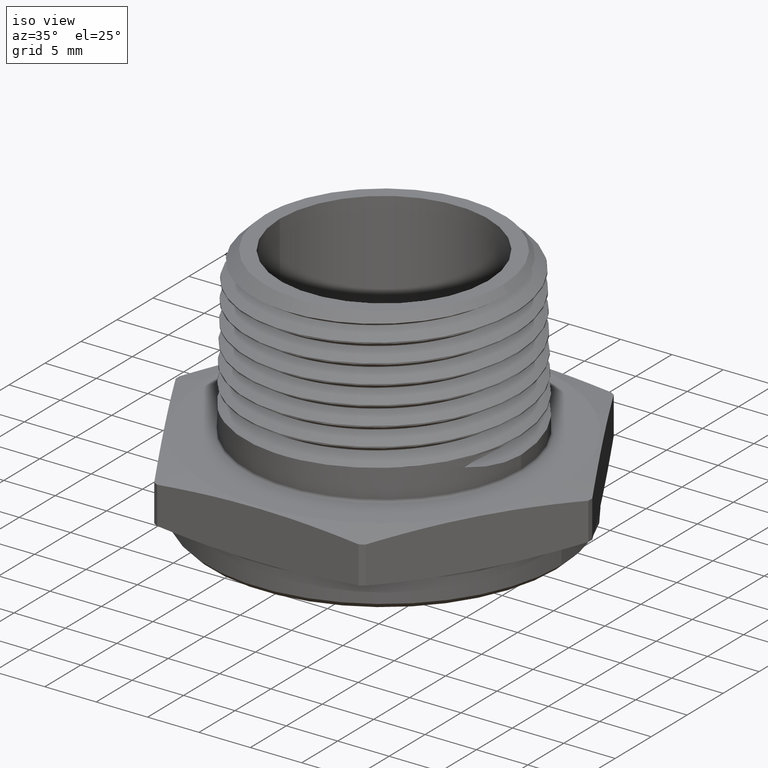
[diagram: clean part render]
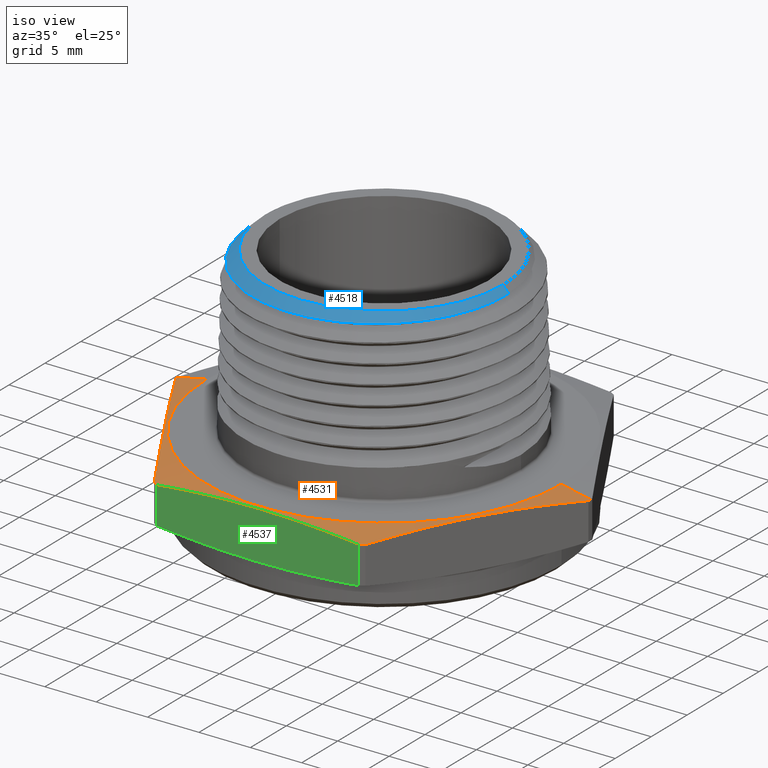
[diagram: same view with three faces highlighted in distinct colors, each labeled with its STEP entity id]
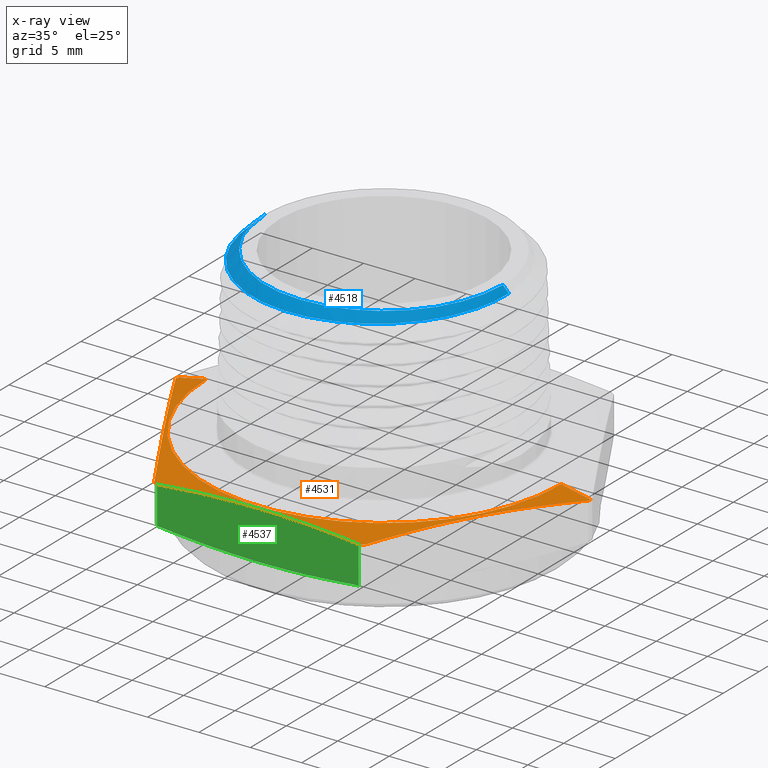
[diagram: x-ray of the same camera — body ghosted, the three highlighted faces saturated]
A machine part, iso view with three faces highlighted in distinct colors.
The next image is the same camera in x-ray (body ghosted, the three faces saturated) — at least one of them is partly hidden behind the body in this view.
Their STEP definitions:

[orange] entity #4531 — the highlighted conical surface has half-angle 78 deg.
#4 = CARTESIAN_POINT ( 'NONE',  ( 0.6799999999999999400, 8.327598234202001900E-017, 0.1899999999999998600 ) ) ;
#5 = DIRECTION ( 'NONE',  ( 0.9781476007338069100, 1.197885328332319900E-016, -0.2079116908177532600 ) ) ;
#951 = DIRECTION ( 'NONE',  ( -0.9781476007338069100, 0.0000000000000000000, -0.2079116908177530400 ) ) ;
#952 = CARTESIAN_POINT ( 'NONE',  ( -0.6799999999999999400, 0.0000000000000000000, 0.1899999999999999700 ) ) ;
#960 = CARTESIAN_POINT ( 'NONE',  ( 2.038556488335811200E-017, 0.0000000000000000000, 0.1664607697301080700 ) ) ;
#961 = DIRECTION ( 'NONE',  ( -1.224646799147351200E-016, -0.0000000000000000000, -1.000000000000000000 ) ) ;
#962 = DIRECTION ( 'NONE',  ( -1.000000000000000000, 0.0000000000000000000, 1.295544211397577000E-016 ) ) ;
#988 = CARTESIAN_POINT ( 'NONE',  ( 0.4044415792814493600, -0.6794866359911330100, 0.1664607697301080400 ) ) ;
#989 = CARTESIAN_POINT ( 'NONE',  ( -0.4044415792814489200, -0.6794866359911333500, 0.1664607697301080900 ) ) ;
#992 = CARTESIAN_POINT ( 'NONE',  ( 0.3862318986596263200, -0.6899999999999997200, 0.1664607697301080400 ) ) ;
#1098 = DIRECTION ( 'NONE',  ( -1.000000000000000000, 0.0000000000000000000, 1.004355880023626300E-016 ) ) ;
#1099 = CARTESIAN_POINT ( 'NONE',  ( 2.326828918379966200E-017, 0.0000000000000000000, 0.1899999999999999200 ) ) ;
#1100 = DIRECTION ( 'NONE',  ( -1.224646799147351200E-016, -0.0000000000000000000, -1.000000000000000000 ) ) ;
#1288 = B_SPLINE_CURVE_WITH_KNOTS ( 'NONE', 3,
 ( #2893, #2895, #2896, #2897, #2898, #2899, #2900, #2901, #2902 ),
 .UNSPECIFIED., .F., .F.,
 ( 4, 2, 1, 2, 4 ),
 ( 1.926240183769432900E-006, 0.004907071353161022000, 0.009812216466138274200, 0.01471736157911553200, 0.01962250669209278700 ),
 .UNSPECIFIED. ) ;
#1289 = B_SPLINE_CURVE_WITH_KNOTS ( 'NONE', 3,
 ( #2904, #2892, #2894, #2906, #2907, #2908, #2909, #2910, #2911, #2912 ),
 .UNSPECIFIED., .F., .F.,
 ( 4, 2, 2, 2, 4 ),
 ( 0.03855886827555554000, 0.04347868095374842600, 0.04839849363194130600, 0.05331830631013419200, 0.05823811898832707800 ),
 .UNSPECIFIED. ) ;
#1290 = B_SPLINE_CURVE_WITH_KNOTS ( 'NONE', 3,
 ( #2914, #2903, #2905, #2916, #2917, #2918, #2919, #2920, #2921 ),
 .UNSPECIFIED., .F., .F.,
 ( 4, 2, 1, 2, 4 ),
 ( 1.926240183754274000E-006, 0.004907071353161006300, 0.009812216466138258500, 0.01471736157911551100, 0.01962250669209276300 ),
 .UNSPECIFIED. ) ;
#2791 = CARTESIAN_POINT ( 'NONE',  ( -0.6799999999999998300, 0.0000000000000000000, 0.1899999999999999700 ) ) ;
#2828 = CARTESIAN_POINT ( 'NONE',  ( 0.6800000000000001600, 8.327598234202003100E-017, 0.1899999999999998600 ) ) ;
#2839 = CARTESIAN_POINT ( 'NONE',  ( 0.7907433714816832800, 9.683813388320298700E-017, 0.1664607697301079500 ) ) ;
#2842 = CARTESIAN_POINT ( 'NONE',  ( -0.7907433714816832800, 0.0000000000000000000, 0.1664607697301081800 ) ) ;
#2844 = CARTESIAN_POINT ( 'NONE',  ( -0.7906734779410755600, -0.01051336400886675000, 0.1664607697301081800 ) ) ;
#2845 = CARTESIAN_POINT ( 'NONE',  ( -0.3862318986596260900, -0.6899999999999998400, 0.1664607697301080900 ) ) ;
#2880 = CARTESIAN_POINT ( 'NONE',  ( 0.7906734779410755600, -0.01051336400886681900, 0.1664607697301079500 ) ) ;
#2892 = CARTESIAN_POINT ( 'NONE',  ( 0.3219976927785969100, -0.6899999999999996100, 0.1731296582039849900 ) ) ;
#2893 = CARTESIAN_POINT ( 'NONE',  ( -0.4044415792814489200, -0.6794866359911333500, 0.1664607697301080900 ) ) ;
#2894 = CARTESIAN_POINT ( 'NONE',  ( 0.2577350373824610600, -0.6899999999999997200, 0.1785309252663125100 ) ) ;
#2895 = CARTESIAN_POINT ( 'NONE',  ( -0.4366275708364179000, -0.6237388633259445300, 0.1731439624358382700 ) ) ;
#2896 = CARTESIAN_POINT ( 'NONE',  ( -0.4688135623913867700, -0.5679910906607557000, 0.1785507198903874800 ) ) ;
#2897 = CARTESIAN_POINT ( 'NONE',  ( -0.5331855455013244600, -0.4564955453303777800, 0.1859262670952156700 ) ) ;
#2898 = CARTESIAN_POINT ( 'NONE',  ( -0.5975575286112625500, -0.3450000000000002000, 0.1898226016713840400 ) ) ;
#2899 = CARTESIAN_POINT ( 'NONE',  ( -0.6619295117212000700, -0.2335044546696225200, 0.1859262670952157300 ) ) ;
#2900 = CARTESIAN_POINT ( 'NONE',  ( -0.7263014948311378200, -0.1220089093392447100, 0.1785507198903875900 ) ) ;
#2901 = CARTESIAN_POINT ( 'NONE',  ( -0.7584874863861066400, -0.06626113667405585100, 0.1731439624358384100 ) ) ;
#2902 = CARTESIAN_POINT ( 'NONE',  ( -0.7906734779410755600, -0.01051336400886675000, 0.1664607697301081800 ) ) ;
#2903 = CARTESIAN_POINT ( 'NONE',  ( 0.7584874863861066400, -0.06626113667405567100, 0.1731439624358382100 ) ) ;
#2904 = CARTESIAN_POINT ( 'NONE',  ( 0.3862318986596263200, -0.6899999999999997200, 0.1664607697301080400 ) ) ;
#2905 = CARTESIAN_POINT ( 'NONE',  ( 0.7263014948311380400, -0.1220089093392446000, 0.1785507198903873400 ) ) ;
#2906 = CARTESIAN_POINT ( 'NONE',  ( 0.1291328840719024900, -0.6899999999999996100, 0.1859095971165682400 ) ) ;
#2907 = CARTESIAN_POINT ( 'NONE',  ( 0.06479292136408863800, -0.6899999999999996100, 0.1878662921647165900 ) ) ;
#2908 = CARTESIAN_POINT ( 'NONE',  ( -0.06397446883635367300, -0.6899999999999996100, 0.1878825250134443500 ) ) ;
#2909 = CARTESIAN_POINT ( 'NONE',  ( -0.1284019097057501600, -0.6899999999999997200, 0.1859414667870732700 ) ) ;
#2910 = CARTESIAN_POINT ( 'NONE',  ( -0.2573352418266425800, -0.6899999999999998400, 0.1785638466773604200 ) ) ;
#2911 = CARTESIAN_POINT ( 'NONE',  ( -0.3219022491185342700, -0.6899999999999997200, 0.1731395673032845900 ) ) ;
#2912 = CARTESIAN_POINT ( 'NONE',  ( -0.3862318986596260900, -0.6899999999999998400, 0.1664607697301080900 ) ) ;
#2914 = CARTESIAN_POINT ( 'NONE',  ( 0.7906734779410755600, -0.01051336400886681900, 0.1664607697301079500 ) ) ;
#2916 = CARTESIAN_POINT ( 'NONE',  ( 0.6619295117211999600, -0.2335044546696222200, 0.1859262670952154800 ) ) ;
#2917 = CARTESIAN_POINT ( 'NONE',  ( 0.5975575286112624300, -0.3450000000000000300, 0.1898226016713839800 ) ) ;
#2918 = CARTESIAN_POINT ( 'NONE',  ( 0.5331855455013245800, -0.4564955453303776700, 0.1859262670952155400 ) ) ;
#2919 = CARTESIAN_POINT ( 'NONE',  ( 0.4688135623913871100, -0.5679910906607553700, 0.1785507198903874300 ) ) ;
#2920 = CARTESIAN_POINT ( 'NONE',  ( 0.4366275708364181800, -0.6237388633259443000, 0.1731439624358382100 ) ) ;
#2921 = CARTESIAN_POINT ( 'NONE',  ( 0.4044415792814493600, -0.6794866359911330100, 0.1664607697301080400 ) ) ;
#3223 = CARTESIAN_POINT ( 'NONE',  ( 2.326828918379966200E-017, 0.0000000000000000000, 0.1899999999999999200 ) ) ;
#3224 = DIRECTION ( 'NONE',  ( -1.224646799147351200E-016, -0.0000000000000000000, -1.000000000000000000 ) ) ;
#3225 = DIRECTION ( 'NONE',  ( -1.000000000000000000, 0.0000000000000000000, 1.004355880023626300E-016 ) ) ;
#3237 = CARTESIAN_POINT ( 'NONE',  ( 2.038556488335811200E-017, 0.0000000000000000000, 0.1664607697301080700 ) ) ;
#3238 = DIRECTION ( 'NONE',  ( -1.224646799147351200E-016, -0.0000000000000000000, -1.000000000000000000 ) ) ;
#3239 = DIRECTION ( 'NONE',  ( -1.000000000000000000, 0.0000000000000000000, 1.295544211397577000E-016 ) ) ;
#3249 = CARTESIAN_POINT ( 'NONE',  ( 2.038556488335811200E-017, 0.0000000000000000000, 0.1664607697301080700 ) ) ;
#3250 = DIRECTION ( 'NONE',  ( -1.224646799147351200E-016, -0.0000000000000000000, -1.000000000000000000 ) ) ;
#3251 = DIRECTION ( 'NONE',  ( -1.000000000000000000, 0.0000000000000000000, 1.295544211397577000E-016 ) ) ;
#3256 = CARTESIAN_POINT ( 'NONE',  ( 2.038556488335811200E-017, 0.0000000000000000000, 0.1664607697301080700 ) ) ;
#3257 = DIRECTION ( 'NONE',  ( -1.224646799147351200E-016, -0.0000000000000000000, -1.000000000000000000 ) ) ;
#3258 = DIRECTION ( 'NONE',  ( -1.000000000000000000, 0.0000000000000000000, 1.295544211397577000E-016 ) ) ;
#3503 = EDGE_CURVE ( 'NONE', #4278, #4289, #4035, .T. ) ;
#3511 = EDGE_CURVE ( 'NONE', #4262, #4292, #4043, .T. ) ;
#3512 = EDGE_CURVE ( 'NONE', #4294, #4292, #4044, .T. ) ;
#3582 = EDGE_CURVE ( 'NONE', #4278, #4262, #4098, .T. ) ;
#3586 = EDGE_CURVE ( 'NONE', #4295, #4344, #4097, .T. ) ;
#3591 = EDGE_CURVE ( 'NONE', #4343, #4347, #4103, .T. ) ;
#3594 = EDGE_CURVE ( 'NONE', #4289, #4330, #4114, .T. ) ;
#3601 = EDGE_CURVE ( 'NONE', #4344, #4294, #1288, .T. ) ;
#3602 = EDGE_CURVE ( 'NONE', #4347, #4295, #1289, .T. ) ;
#3603 = EDGE_CURVE ( 'NONE', #4330, #4343, #1290, .T. ) ;
#3627 = AXIS2_PLACEMENT_3D ( 'NONE', #960, #961, #962 ) ;
#3637 = AXIS2_PLACEMENT_3D ( 'NONE', #3223, #3224, #3225 ) ;
#3640 = AXIS2_PLACEMENT_3D ( 'NONE', #3237, #3238, #3239 ) ;
#3642 = AXIS2_PLACEMENT_3D ( 'NONE', #3249, #3250, #3251 ) ;
#3643 = AXIS2_PLACEMENT_3D ( 'NONE', #3256, #3257, #3258 ) ;
#3679 = AXIS2_PLACEMENT_3D ( 'NONE', #1099, #1100, #1098 ) ;
#4011 = EDGE_LOOP ( 'NONE', ( #4373, #4374, #4375, #4376, #4377, #4378, #4379, #4380, #4381, #4382 ) ) ;
#4035 = LINE ( 'NONE', #4, #4039 ) ;
#4039 = VECTOR ( 'NONE', #5, 39.37007874015748100 ) ;
#4043 = LINE ( 'NONE', #952, #4045 ) ;
#4044 = CIRCLE ( 'NONE', #3627, 0.7907433714816832800 ) ;
#4045 = VECTOR ( 'NONE', #951, 39.37007874015748900 ) ;
#4097 = CIRCLE ( 'NONE', #3640, 0.7907433714816832800 ) ;
#4098 = CIRCLE ( 'NONE', #3637, 0.6799999999999999400 ) ;
#4103 = CIRCLE ( 'NONE', #3642, 0.7907433714816832800 ) ;
#4114 = CIRCLE ( 'NONE', #3643, 0.7907433714816832800 ) ;
#4200 = FACE_OUTER_BOUND ( 'NONE', #4011, .T. ) ;
#4207 = CONICAL_SURFACE ( 'NONE', #3679, 0.6799999999999999400, 1.361356816555583400 ) ;
#4262 = VERTEX_POINT ( 'NONE', #2791 ) ;
#4278 = VERTEX_POINT ( 'NONE', #2828 ) ;
#4289 = VERTEX_POINT ( 'NONE', #2839 ) ;
#4292 = VERTEX_POINT ( 'NONE', #2842 ) ;
#4294 = VERTEX_POINT ( 'NONE', #2844 ) ;
#4295 = VERTEX_POINT ( 'NONE', #2845 ) ;
#4330 = VERTEX_POINT ( 'NONE', #2880 ) ;
#4343 = VERTEX_POINT ( 'NONE', #988 ) ;
#4344 = VERTEX_POINT ( 'NONE', #989 ) ;
#4347 = VERTEX_POINT ( 'NONE', #992 ) ;
#4373 = ORIENTED_EDGE ( 'NONE', *, *, #3503, .F. ) ;
#4374 = ORIENTED_EDGE ( 'NONE', *, *, #3582, .T. ) ;
#4375 = ORIENTED_EDGE ( 'NONE', *, *, #3511, .T. ) ;
#4376 = ORIENTED_EDGE ( 'NONE', *, *, #3512, .F. ) ;
#4377 = ORIENTED_EDGE ( 'NONE', *, *, #3601, .F. ) ;
#4378 = ORIENTED_EDGE ( 'NONE', *, *, #3586, .F. ) ;
#4379 = ORIENTED_EDGE ( 'NONE', *, *, #3602, .F. ) ;
#4380 = ORIENTED_EDGE ( 'NONE', *, *, #3591, .F. ) ;
#4381 = ORIENTED_EDGE ( 'NONE', *, *, #3603, .F. ) ;
#4382 = ORIENTED_EDGE ( 'NONE', *, *, #3594, .F. ) ;
#4531 = ADVANCED_FACE ( 'NONE', ( #4200 ), #4207, .T. ) ;

[blue] entity #4518 — the highlighted conical surface has half-angle 45 deg.
#1 = ORIENTED_EDGE ( 'NONE', *, *, #3561, .F. ) ;
#214 = ORIENTED_EDGE ( 'NONE', *, *, #3564, .T. ) ;
#944 = ORIENTED_EDGE ( 'NONE', *, *, #3565, .T. ) ;
#980 = CARTESIAN_POINT ( 'NONE',  ( -0.4605505608381587100, 3.562229058007021700E-013, 0.8147494391618412800 ) ) ;
#981 = CARTESIAN_POINT ( 'NONE',  ( -0.5015766414513303000, -1.792775245842172800E-016, 0.7737233585486705800 ) ) ;
#1056 = DIRECTION ( 'NONE',  ( -1.000000000000000000, 0.0000000000000000000, 0.0000000000000000000 ) ) ;
#1057 = CARTESIAN_POINT ( 'NONE',  ( 0.0000000000000000000, 0.0000000000000000000, 0.7619092775716851400 ) ) ;
#1058 = DIRECTION ( 'NONE',  ( -0.0000000000000000000, -0.0000000000000000000, -1.000000000000000000 ) ) ;
#1280 = B_SPLINE_CURVE_WITH_KNOTS ( 'NONE', 3,
 ( #3328, #3332, #3339, #3340, #3341, #3342, #3343, #3344, #3345, #3346, #3347, #3348, #3349, #3350, #3351, #3352, #3353, #3354, #3355, #3356, #3357, #3358, #3359, #3360, #3361, #3362, #3363, #3364, #3365, #3366, #3367, #3368, #3369, #3370, #3371, #3372, #3373, #3374, #3375, #3376, #3377, #3378, #3379, #3380, #3381, #3382, #3383 ),
 .UNSPECIFIED., .F., .F.,
 ( 4, 2, 2, 2, 2, 2, 2, 2, 2, 2, 2, 2, 2, 1, 2, 2, 2, 2, 2, 2, 2, 2, 2, 4 ),
 ( 0.02081495255427050200, 0.02326129049279242200, 0.02448445946205338500, 0.02570762843131434500, 0.02815396636983626500, 0.03060030430835818500, 0.03182347327761914100, 0.03304664224688010100, 0.03549298018540202000, 0.03671614915466298000, 0.03793931812392394000, 0.04038565606244584600, 0.04160882503170681300, 0.04283199400096776600, 0.04405516297022872600, 0.04527833193948967900, 0.04772466987801159100, 0.04894783884727255100, 0.05017100781653350400, 0.05261734575505541700, 0.05384051472431637700, 0.05506368369357733000, 0.05751002163209924200, 0.05995635957062115500 ),
 .UNSPECIFIED. ) ;
#2875 = CARTESIAN_POINT ( 'NONE',  ( -0.4553000000000001500, 0.0000000000000000000, 0.8199999999999999500 ) ) ;
#2876 = CARTESIAN_POINT ( 'NONE',  ( 0.4553000000000001500, 5.860879756886066600E-017, 0.8199999999999999500 ) ) ;
#2879 = CARTESIAN_POINT ( 'NONE',  ( -0.4497332923931922600, -0.07618520529804984100, 0.8191594297882217600 ) ) ;
#2881 = CARTESIAN_POINT ( 'NONE',  ( 0.4785987701361332800, 1.449462907897988800E-015, 0.7967012298638671600 ) ) ;
#2883 = CARTESIAN_POINT ( 'NONE',  ( -0.4562165172905737200, -5.975917486140575200E-017, 0.8190834827094264400 ) ) ;
#3265 = CARTESIAN_POINT ( 'NONE',  ( 0.5133907224283157400, 6.287223049337841400E-017, 0.7619092775716851400 ) ) ;
#3269 = DIRECTION ( 'NONE',  ( 0.7071067811865516800, 8.659560562354983400E-017, -0.7071067811865433500 ) ) ;
#3317 = CARTESIAN_POINT ( 'NONE',  ( -0.4555214865556566100, -0.05096441511527716900, 0.8176649507079547500 ) ) ;
#3318 = CARTESIAN_POINT ( 'NONE',  ( -0.5133907224283157400, 0.0000000000000000000, 0.7619092775716851400 ) ) ;
#3321 = CARTESIAN_POINT ( 'NONE',  ( -0.4497332923931922600, -0.07618520529804984100, 0.8191594297882217600 ) ) ;
#3322 = DIRECTION ( 'NONE',  ( -0.7071067811865516800, 0.0000000000000000000, -0.7071067811865433500 ) ) ;
#3323 = CARTESIAN_POINT ( 'NONE',  ( -0.4562165172905737200, -5.975917486140575200E-017, 0.8190834827094264400 ) ) ;
#3324 = CARTESIAN_POINT ( 'NONE',  ( -0.4562002005713485800, -0.02551602680597247700, 0.8190997994286517400 ) ) ;
#3325 = CARTESIAN_POINT ( 'NONE',  ( 0.0000000000000000000, 0.0000000000000000000, 0.8199999999999999500 ) ) ;
#3326 = DIRECTION ( 'NONE',  ( -0.0000000000000000000, -0.0000000000000000000, -1.000000000000000000 ) ) ;
#3327 = DIRECTION ( 'NONE',  ( -1.000000000000000000, 0.0000000000000000000, 0.0000000000000000000 ) ) ;
#3328 = CARTESIAN_POINT ( 'NONE',  ( -0.5015766414513303000, -1.792775245842172800E-016, 0.7737233585486705800 ) ) ;
#3329 = CARTESIAN_POINT ( 'NONE',  ( -0.4540191827970199200, -0.05101026004356571500, 0.8191384949512771100 ) ) ;
#3330 = CARTESIAN_POINT ( 'NONE',  ( -0.4497332923931922600, -0.07618520529804984100, 0.8191594297882217600 ) ) ;
#3331 = CARTESIAN_POINT ( 'NONE',  ( -0.5133907224283157400, 0.0000000000000000000, 0.7619092775716851400 ) ) ;
#3332 = CARTESIAN_POINT ( 'NONE',  ( -0.5011101766742842600, -0.03198867400920032300, 0.7741898233257167300 ) ) ;
#3333 = CARTESIAN_POINT ( 'NONE',  ( -0.4590796347392118200, -0.02556410600383844300, 0.8162203652608079900 ) ) ;
#3334 = CARTESIAN_POINT ( 'NONE',  ( -0.4605505608381587100, 3.562229058007021700E-013, 0.8147494391618412800 ) ) ;
#3335 = DIRECTION ( 'NONE',  ( -0.7071067811865516800, 0.0000000000000000000, -0.7071067811865433500 ) ) ;
#3339 = CARTESIAN_POINT ( 'NONE',  ( -0.4976029916506769000, -0.06373852957272976800, 0.7746650349155788100 ) ) ;
#3340 = CARTESIAN_POINT ( 'NONE',  ( -0.4877154997735949100, -0.1110002193850605200, 0.7753715399917114900 ) ) ;
#3341 = CARTESIAN_POINT ( 'NONE',  ( -0.4836220191206987400, -0.1267306919933150500, 0.7756071911715539700 ) ) ;
#3342 = CARTESIAN_POINT ( 'NONE',  ( -0.4740383888588218200, -0.1573976152985898900, 0.7760722153796663100 ) ) ;
#3343 = CARTESIAN_POINT ( 'NONE',  ( -0.4685354686695977800, -0.1724165691890780000, 0.7763028303064478700 ) ) ;
#3344 = CARTESIAN_POINT ( 'NONE',  ( -0.4499204266178238900, -0.2165416333923528000, 0.7770033656551446100 ) ) ;
#3345 = CARTESIAN_POINT ( 'NONE',  ( -0.4346842388688919600, -0.2447798960115148700, 0.7774836933008062400 ) ) ;
#3346 = CARTESIAN_POINT ( 'NONE',  ( -0.3985505294880755100, -0.2984576636405662500, 0.7784368480716236100 ) ) ;
#3347 = CARTESIAN_POINT ( 'NONE',  ( -0.3781842149853270600, -0.3231311111862018600, 0.7788958270442942800 ) ) ;
#3348 = CARTESIAN_POINT ( 'NONE',  ( -0.3442870628461393600, -0.3569878906533327000, 0.7795995283659976600 ) ) ;
#3349 = CARTESIAN_POINT ( 'NONE',  ( -0.3324248498677552200, -0.3677429710417690600, 0.7798383612266498500 ) ) ;
#3350 = CARTESIAN_POINT ( 'NONE',  ( -0.3075516071214283200, -0.3881710264157862700, 0.7803193956048321000 ) ) ;
#3351 = CARTESIAN_POINT ( 'NONE',  ( -0.2944979278522484900, -0.3978627055743521600, 0.7805620350663422500 ) ) ;
#3352 = CARTESIAN_POINT ( 'NONE',  ( -0.2544421328546606600, -0.4246771866216177400, 0.7812766406227070700 ) ) ;
#3353 = CARTESIAN_POINT ( 'NONE',  ( -0.2263109068301850700, -0.4397873223611576400, 0.7817377471543695000 ) ) ;
#3354 = CARTESIAN_POINT ( 'NONE',  ( -0.1819757056145904200, -0.4583071348442672200, 0.7824469460613756600 ) ) ;
#3355 = CARTESIAN_POINT ( 'NONE',  ( -0.1667961549721685100, -0.4637954819954025500, 0.7826888845794016700 ) ) ;
#3356 = CARTESIAN_POINT ( 'NONE',  ( -0.1358706227198357200, -0.4732733193178403400, 0.7831750509276316200 ) ) ;
#3357 = CARTESIAN_POINT ( 'NONE',  ( -0.1202977286007214900, -0.4772147581521032400, 0.7834162421008871200 ) ) ;
#3358 = CARTESIAN_POINT ( 'NONE',  ( -0.07325960303219634900, -0.4867261066283138400, 0.7841320838744142400 ) ) ;
#3359 = CARTESIAN_POINT ( 'NONE',  ( -0.04147826549307791900, -0.4900075179181245200, 0.7845962744431016500 ) ) ;
#3360 = CARTESIAN_POINT ( 'NONE',  ( 0.006845939916110768500, -0.4902032889668836400, 0.7853135568763243100 ) ) ;
#3361 = CARTESIAN_POINT ( 'NONE',  ( 0.02308236765651479300, -0.4894606219845181200, 0.7855585584111072200 ) ) ;
#3362 = CARTESIAN_POINT ( 'NONE',  ( 0.05505450373847582000, -0.4864135750364105800, 0.7860440876176799700 ) ) ;
#3363 = CARTESIAN_POINT ( 'NONE',  ( 0.08670847958060358400, -0.4818132094774070200, 0.7865271689056130300 ) ) ;
#3364 = CARTESIAN_POINT ( 'NONE',  ( 0.1177375496335427600, -0.4741617071976235700, 0.7870023977906119800 ) ) ;
#3365 = CARTESIAN_POINT ( 'NONE',  ( 0.1484495787013144200, -0.4649625435696609900, 0.7874777603506287700 ) ) ;
#3366 = CARTESIAN_POINT ( 'NONE',  ( 0.1637155985279739600, -0.4595601817552000800, 0.7877165994319901300 ) ) ;
#3367 = CARTESIAN_POINT ( 'NONE',  ( 0.2085242426808953700, -0.4411271333176982100, 0.7884403013725526100 ) ) ;
#3368 = CARTESIAN_POINT ( 'NONE',  ( 0.2367316052569573800, -0.4260698625786077400, 0.7889300839277779700 ) ) ;
#3369 = CARTESIAN_POINT ( 'NONE',  ( 0.2766332135607363400, -0.3994770549150500900, 0.7896535948014810100 ) ) ;
#3370 = CARTESIAN_POINT ( 'NONE',  ( 0.2895289310463887700, -0.3899395862806047100, 0.7898934227178160400 ) ) ;
#3371 = CARTESIAN_POINT ( 'NONE',  ( 0.3144849086034766600, -0.3694754418542328100, 0.7903747250555307500 ) ) ;
#3372 = CARTESIAN_POINT ( 'NONE',  ( 0.3264948854347835000, -0.3585769013847073800, 0.7906153923347083400 ) ) ;
#3373 = CARTESIAN_POINT ( 'NONE',  ( 0.3604702454217668700, -0.3245119914274854900, 0.7913389598755177200 ) ) ;
#3374 = CARTESIAN_POINT ( 'NONE',  ( 0.3806664066423396900, -0.2997766587038232500, 0.7918309781227559400 ) ) ;
#3375 = CARTESIAN_POINT ( 'NONE',  ( 0.4072852371759359500, -0.2596398477730504400, 0.7925615105573200500 ) ) ;
#3376 = CARTESIAN_POINT ( 'NONE',  ( 0.4155812913888891100, -0.2456673838296804500, 0.7928057306045005500 ) ) ;
#3377 = CARTESIAN_POINT ( 'NONE',  ( 0.4306191723148764500, -0.2171663545557019600, 0.7932890624835544600 ) ) ;
#3378 = CARTESIAN_POINT ( 'NONE',  ( 0.4373756373522965100, -0.2026367502522298000, 0.7935283530872259100 ) ) ;
#3379 = CARTESIAN_POINT ( 'NONE',  ( 0.4554006136182544600, -0.1582266605061895000, 0.7942546058358285200 ) ) ;
#3380 = CARTESIAN_POINT ( 'NONE',  ( 0.4644470413866008100, -0.1275330807426390800, 0.7947504530700476600 ) ) ;
#3381 = CARTESIAN_POINT ( 'NONE',  ( 0.4763880931607830100, -0.06389440556035350100, 0.7957374529997310900 ) ) ;
#3382 = CARTESIAN_POINT ( 'NONE',  ( 0.4790869288509472800, -0.03194277959286656600, 0.7962130711490536000 ) ) ;
#3383 = CARTESIAN_POINT ( 'NONE',  ( 0.4785987701361332800, 1.449462907897988800E-015, 0.7967012298638671600 ) ) ;
#3561 = EDGE_CURVE ( 'NONE', #4326, #4331, #4083, .T. ) ;
#3564 = EDGE_CURVE ( 'NONE', #4325, #4333, #4084, .T. ) ;
#3565 = EDGE_CURVE ( 'NONE', #4326, #4325, #4085, .T. ) ;
#3566 = EDGE_CURVE ( 'NONE', #4333, #4329, #5061, .T. ) ;
#3567 = EDGE_CURVE ( 'NONE', #4329, #4335, #5062, .T. ) ;
#3568 = EDGE_CURVE ( 'NONE', #4335, #4336, #4089, .T. ) ;
#3569 = EDGE_CURVE ( 'NONE', #4336, #4331, #1280, .T. ) ;
#3632 = AXIS2_PLACEMENT_3D ( 'NONE', #3325, #3326, #3327 ) ;
#3674 = AXIS2_PLACEMENT_3D ( 'NONE', #1057, #1058, #1056 ) ;
#4083 = LINE ( 'NONE', #3265, #4086 ) ;
#4084 = LINE ( 'NONE', #3318, #4088 ) ;
#4085 = CIRCLE ( 'NONE', #3632, 0.4553000000000001500 ) ;
#4086 = VECTOR ( 'NONE', #3269, 39.37007874015748100 ) ;
#4087 = VECTOR ( 'NONE', #3335, 39.37007874015748100 ) ;
#4088 = VECTOR ( 'NONE', #3322, 39.37007874015748100 ) ;
#4089 = LINE ( 'NONE', #3331, #4087 ) ;
#4177 = FACE_OUTER_BOUND ( 'NONE', #4250, .T. ) ;
#4182 = CONICAL_SURFACE ( 'NONE', #3674, 0.5133907224283157400, 0.7853981633974541600 ) ;
#4216 = ORIENTED_EDGE ( 'NONE', *, *, #3566, .T. ) ;
#4217 = ORIENTED_EDGE ( 'NONE', *, *, #3567, .T. ) ;
#4218 = ORIENTED_EDGE ( 'NONE', *, *, #3568, .T. ) ;
#4219 = ORIENTED_EDGE ( 'NONE', *, *, #3569, .T. ) ;
#4250 = EDGE_LOOP ( 'NONE', ( #1, #944, #214, #4216, #4217, #4218, #4219 ) ) ;
#4325 = VERTEX_POINT ( 'NONE', #2875 ) ;
#4326 = VERTEX_POINT ( 'NONE', #2876 ) ;
#4329 = VERTEX_POINT ( 'NONE', #2879 ) ;
#4331 = VERTEX_POINT ( 'NONE', #2881 ) ;
#4333 = VERTEX_POINT ( 'NONE', #2883 ) ;
#4335 = VERTEX_POINT ( 'NONE', #980 ) ;
#4336 = VERTEX_POINT ( 'NONE', #981 ) ;
#4518 = ADVANCED_FACE ( 'NONE', ( #4177 ), #4182, .T. ) ;
#5061 = B_SPLINE_CURVE_WITH_KNOTS ( 'NONE', 3,
 ( #3323, #3324, #3329, #3330 ),
 .UNSPECIFIED., .F., .F.,
 ( 4, 4 ),
 ( 0.0009698527203019389700, 0.002915772946939130000 ),
 .UNSPECIFIED. ) ;
#5062 = B_SPLINE_CURVE_WITH_KNOTS ( 'NONE', 3,
 ( #3321, #3317, #3333, #3334 ),
 .UNSPECIFIED., .F., .F.,
 ( 4, 4 ),
 ( 2.168404344971008900E-019, 0.001953970434791834700 ),
 .UNSPECIFIED. ) ;

[green] entity #4537 — the highlighted planar face has unit normal (-0, 1, 0).
#979 = CARTESIAN_POINT ( 'NONE',  ( -0.3862318986596260400, -0.6899999999999997200, 0.02353923026989180800 ) ) ;
#987 = CARTESIAN_POINT ( 'NONE',  ( 0.3862318986596263200, -0.6899999999999997200, 0.02353923026989166200 ) ) ;
#992 = CARTESIAN_POINT ( 'NONE',  ( 0.3862318986596263200, -0.6899999999999997200, 0.1664607697301080400 ) ) ;
#1118 = PLANE ( 'NONE',  #3693 ) ;
#1119 = CARTESIAN_POINT ( 'NONE',  ( -0.3983716857408414700, -0.6899999999999997200, 0.1899999999999999700 ) ) ;
#1124 = DIRECTION ( 'NONE',  ( -1.714383885355654900E-016, 1.000000000000000000, 0.0000000000000000000 ) ) ;
#1125 = DIRECTION ( 'NONE',  ( -1.000000000000000000, -1.714383885355654900E-016, 0.0000000000000000000 ) ) ;
#1289 = B_SPLINE_CURVE_WITH_KNOTS ( 'NONE', 3,
 ( #2904, #2892, #2894, #2906, #2907, #2908, #2909, #2910, #2911, #2912 ),
 .UNSPECIFIED., .F., .F.,
 ( 4, 2, 2, 2, 4 ),
 ( 0.03855886827555554000, 0.04347868095374842600, 0.04839849363194130600, 0.05331830631013419200, 0.05823811898832707800 ),
 .UNSPECIFIED. ) ;
#1292 = B_SPLINE_CURVE_WITH_KNOTS ( 'NONE', 3,
 ( #2932, #2922, #2924, #2934, #2935, #2936, #2937, #2938, #2939, #2940 ),
 .UNSPECIFIED., .F., .F.,
 ( 4, 2, 2, 2, 4 ),
 ( 0.01710251232692972300, 0.02202714262652874500, 0.02695177292612777100, 0.03187640322572679600, 0.03680103352532582100 ),
 .UNSPECIFIED. ) ;
#2845 = CARTESIAN_POINT ( 'NONE',  ( -0.3862318986596260900, -0.6899999999999998400, 0.1664607697301080900 ) ) ;
#2892 = CARTESIAN_POINT ( 'NONE',  ( 0.3219976927785969100, -0.6899999999999996100, 0.1731296582039849900 ) ) ;
#2894 = CARTESIAN_POINT ( 'NONE',  ( 0.2577350373824610600, -0.6899999999999997200, 0.1785309252663125100 ) ) ;
#2904 = CARTESIAN_POINT ( 'NONE',  ( 0.3862318986596263200, -0.6899999999999997200, 0.1664607697301080400 ) ) ;
#2906 = CARTESIAN_POINT ( 'NONE',  ( 0.1291328840719024900, -0.6899999999999996100, 0.1859095971165682400 ) ) ;
#2907 = CARTESIAN_POINT ( 'NONE',  ( 0.06479292136408863800, -0.6899999999999996100, 0.1878662921647165900 ) ) ;
#2908 = CARTESIAN_POINT ( 'NONE',  ( -0.06397446883635367300, -0.6899999999999996100, 0.1878825250134443500 ) ) ;
#2909 = CARTESIAN_POINT ( 'NONE',  ( -0.1284019097057501600, -0.6899999999999997200, 0.1859414667870732700 ) ) ;
#2910 = CARTESIAN_POINT ( 'NONE',  ( -0.2573352418266425800, -0.6899999999999998400, 0.1785638466773604200 ) ) ;
#2911 = CARTESIAN_POINT ( 'NONE',  ( -0.3219022491185342700, -0.6899999999999997200, 0.1731395673032845900 ) ) ;
#2912 = CARTESIAN_POINT ( 'NONE',  ( -0.3862318986596260900, -0.6899999999999998400, 0.1664607697301080900 ) ) ;
#2922 = CARTESIAN_POINT ( 'NONE',  ( -0.3219022491185341000, -0.6899999999999997200, 0.01686043269671534000 ) ) ;
#2924 = CARTESIAN_POINT ( 'NONE',  ( -0.2573352418266425200, -0.6899999999999997200, 0.01143615332263949900 ) ) ;
#2932 = CARTESIAN_POINT ( 'NONE',  ( -0.3862318986596260400, -0.6899999999999997200, 0.02353923026989180800 ) ) ;
#2934 = CARTESIAN_POINT ( 'NONE',  ( -0.1284019097057501100, -0.6899999999999997200, 0.004058533212926556200 ) ) ;
#2935 = CARTESIAN_POINT ( 'NONE',  ( -0.06397446883635388200, -0.6899999999999998400, 0.002117474986555492100 ) ) ;
#2936 = CARTESIAN_POINT ( 'NONE',  ( 0.06479292136408842900, -0.6899999999999996100, 0.002133707835283188800 ) ) ;
#2937 = CARTESIAN_POINT ( 'NONE',  ( 0.1291328840719026300, -0.6899999999999996100, 0.004090402883431511000 ) ) ;
#2938 = CARTESIAN_POINT ( 'NONE',  ( 0.2577350373824612300, -0.6899999999999996100, 0.01146907473368721400 ) ) ;
#2939 = CARTESIAN_POINT ( 'NONE',  ( 0.3219976927785969100, -0.6899999999999997200, 0.01687034179601469600 ) ) ;
#2940 = CARTESIAN_POINT ( 'NONE',  ( 0.3862318986596263200, -0.6899999999999997200, 0.02353923026989166200 ) ) ;
#3196 = CARTESIAN_POINT ( 'NONE',  ( -0.3862318986596260400, -0.6899999999999997200, 4.729976584221153000E-017 ) ) ;
#3226 = DIRECTION ( 'NONE',  ( -1.224646799147351200E-016, -0.0000000000000000000, -1.000000000000000000 ) ) ;
#3245 = DIRECTION ( 'NONE',  ( 1.224646799147351200E-016, 0.0000000000000000000, 1.000000000000000000 ) ) ;
#3248 = CARTESIAN_POINT ( 'NONE',  ( 0.3862318986596263200, -0.6899999999999997200, -4.729976584221153000E-017 ) ) ;
#3585 = EDGE_CURVE ( 'NONE', #4295, #4334, #4100, .T. ) ;
#3592 = EDGE_CURVE ( 'NONE', #4342, #4347, #4109, .T. ) ;
#3602 = EDGE_CURVE ( 'NONE', #4347, #4295, #1289, .T. ) ;
#3605 = EDGE_CURVE ( 'NONE', #4334, #4342, #1292, .T. ) ;
#3693 = AXIS2_PLACEMENT_3D ( 'NONE', #1119, #1124, #1125 ) ;
#4017 = EDGE_LOOP ( 'NONE', ( #4409, #4410, #4411, #4412 ) ) ;
#4100 = LINE ( 'NONE', #3196, #4102 ) ;
#4102 = VECTOR ( 'NONE', #3226, 39.37007874015748100 ) ;
#4109 = LINE ( 'NONE', #3248, #4113 ) ;
#4113 = VECTOR ( 'NONE', #3245, 39.37007874015748100 ) ;
#4210 = FACE_OUTER_BOUND ( 'NONE', #4017, .T. ) ;
#4295 = VERTEX_POINT ( 'NONE', #2845 ) ;
#4334 = VERTEX_POINT ( 'NONE', #979 ) ;
#4342 = VERTEX_POINT ( 'NONE', #987 ) ;
#4347 = VERTEX_POINT ( 'NONE', #992 ) ;
#4409 = ORIENTED_EDGE ( 'NONE', *, *, #3605, .T. ) ;
#4410 = ORIENTED_EDGE ( 'NONE', *, *, #3592, .T. ) ;
#4411 = ORIENTED_EDGE ( 'NONE', *, *, #3602, .T. ) ;
#4412 = ORIENTED_EDGE ( 'NONE', *, *, #3585, .T. ) ;
#4537 = ADVANCED_FACE ( 'NONE', ( #4210 ), #1118, .F. ) ;